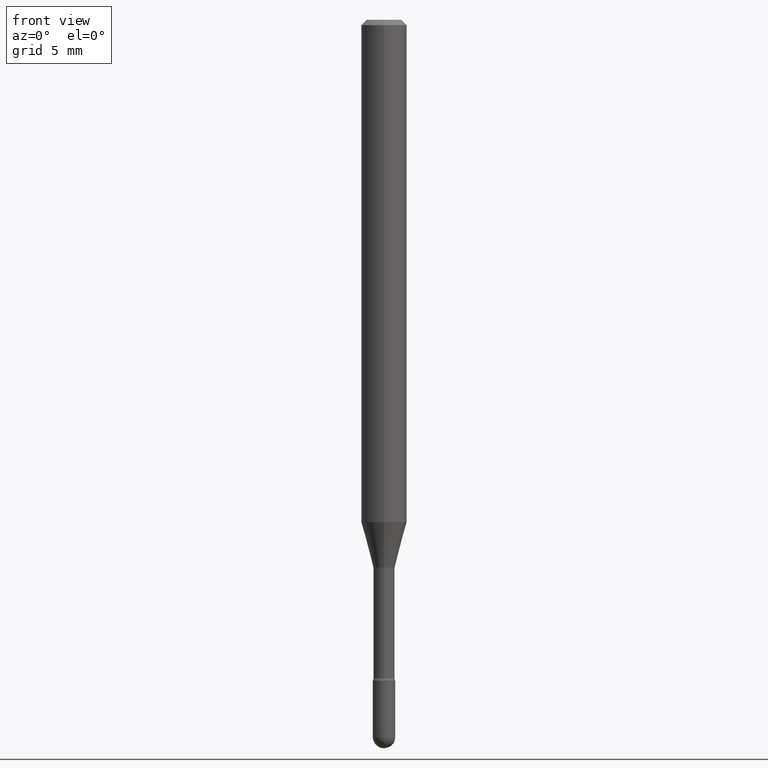
[diagram: clean part render]
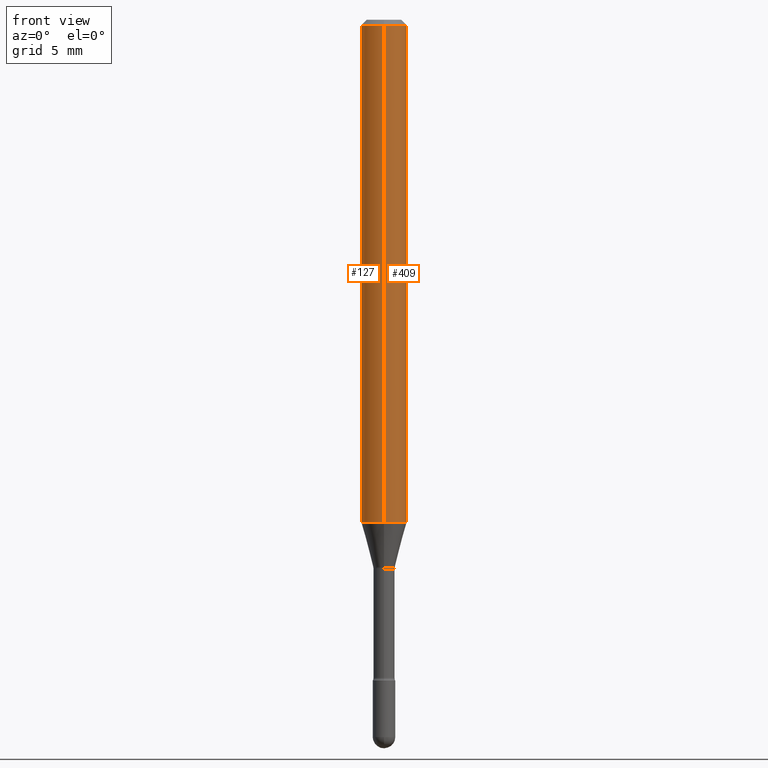
[diagram: same view with one multi-face feature highlighted, each face labeled with its STEP entity id]
A machine part, front view. The highlighted faces form ONE feature: a constant-radius fillet chain: 2 tangent blend faces with common blend radius 1.5875 mm. The faces share edges in the B-rep.
Their STEP definitions:
[1] entity #409 (Cylinder):
#3 = DIRECTION ( 'NONE',  ( -6.982962677686265922E-15, -1.000000000000000000, 3.491481724708022239E-15 ) ) ;
#9 = VECTOR ( 'NONE', #386, 39.37007874015748143 ) ;
#11 = CARTESIAN_POINT ( 'NONE',  ( 4.440892098500625669E-16, 0.06250000000000000000, 2.598557910969947226E-16 ) ) ;
#17 = CARTESIAN_POINT ( 'NONE',  ( 3.668202805105720472E-31, -5.237222587062061363E-17, -0.01500000000000008271 ) ) ;
#29 = EDGE_CURVE ( 'NONE', #126, #60, #77, .T. ) ;
#32 = AXIS2_PLACEMENT_3D ( 'NONE', #17, #71, #117 ) ;
#60 = VERTEX_POINT ( 'NONE', #251 ) ;
#66 = EDGE_CURVE ( 'NONE', #565, #60, #373, .T. ) ;
#69 = AXIS2_PLACEMENT_3D ( 'NONE', #546, #211, #382 ) ;
#71 = DIRECTION ( 'NONE',  ( -2.445468536737133447E-29, 3.491481724708021844E-15, 1.000000000000000000 ) ) ;
#77 = CIRCLE ( 'NONE', #32, 0.06250000000000000000 ) ;
#89 = ORIENTED_EDGE ( 'NONE', *, *, #29, .F. ) ;
#95 = CARTESIAN_POINT ( 'NONE',  ( 4.440892098500961428E-16, 0.06249999999999515665, -1.379536105567578330 ) ) ;
#115 = CARTESIAN_POINT ( 'NONE',  ( -4.364351673553580935E-16, -0.06250000000000484335, -1.379536105567577886 ) ) ;
#117 = DIRECTION ( 'NONE',  ( -6.982962677686265922E-15, -1.000000000000000000, 3.483106191921935554E-15 ) ) ;
#124 = AXIS2_PLACEMENT_3D ( 'NONE', #304, #314, #3 ) ;
#126 = VERTEX_POINT ( 'NONE', #273 ) ;
#190 = ORIENTED_EDGE ( 'NONE', *, *, #393, .T. ) ;
#209 = VERTEX_POINT ( 'NONE', #115 ) ;
#211 = DIRECTION ( 'NONE',  ( -2.445468536737133447E-29, 3.491481724708021844E-15, 1.000000000000000000 ) ) ;
#213 = CARTESIAN_POINT ( 'NONE',  ( -4.364351673553916201E-16, -0.06250000000000000000, 6.962910066854974038E-16 ) ) ;
#246 = VECTOR ( 'NONE', #499, 39.37007874015748143 ) ;
#251 = CARTESIAN_POINT ( 'NONE',  ( 4.440892098500965372E-16, 0.06249999999999995837, -0.01500000000000030129 ) ) ;
#273 = CARTESIAN_POINT ( 'NONE',  ( -4.364351673553912750E-16, -0.06250000000000005551, -0.01499999999999986587 ) ) ;
#304 = CARTESIAN_POINT ( 'NONE',  ( -1.169113584055446105E-44, 1.669184350826100908E-30, 4.780733988912460139E-16 ) ) ;
#314 = DIRECTION ( 'NONE',  ( -2.445468536737133447E-29, 3.491481724708021844E-15, 1.000000000000000000 ) ) ;
#334 = EDGE_CURVE ( 'NONE', #209, #126, #468, .T. ) ;
#373 = LINE ( 'NONE', #11, #246 ) ;
#382 = DIRECTION ( 'NONE',  ( -6.982962677686265922E-15, -1.000000000000000000, 4.370956789862821150E-15 ) ) ;
#386 = DIRECTION ( 'NONE',  ( -2.445468536737133447E-29, 3.491481724708022239E-15, 1.000000000000000000 ) ) ;
#393 = EDGE_CURVE ( 'NONE', #209, #565, #498, .T. ) ;
#409 = ADVANCED_FACE ( 'NONE', ( #556 ), #513, .T. ) ;
#462 = EDGE_LOOP ( 'NONE', ( #190, #521, #89, #518 ) ) ;
#468 = LINE ( 'NONE', #213, #9 ) ;
#498 = CIRCLE ( 'NONE', #69, 0.06250000000000000000 ) ;
#499 = DIRECTION ( 'NONE',  ( -2.445468536737133447E-29, 3.491481724708022239E-15, 1.000000000000000000 ) ) ;
#513 = CYLINDRICAL_SURFACE ( 'NONE', #124, 0.06250000000000000000 ) ;
#518 = ORIENTED_EDGE ( 'NONE', *, *, #334, .F. ) ;
#521 = ORIENTED_EDGE ( 'NONE', *, *, #66, .T. ) ;
#546 = CARTESIAN_POINT ( 'NONE',  ( 3.373612141458388691E-29, -4.816625101164075129E-15, -1.379536105567578108 ) ) ;
#556 = FACE_OUTER_BOUND ( 'NONE', #462, .T. ) ;
#565 = VERTEX_POINT ( 'NONE', #95 ) ;
[2] entity #127 (Cylinder):
#9 = VECTOR ( 'NONE', #386, 39.37007874015748143 ) ;
#11 = CARTESIAN_POINT ( 'NONE',  ( 4.440892098500625669E-16, 0.06250000000000000000, 2.598557910969947226E-16 ) ) ;
#16 = ORIENTED_EDGE ( 'NONE', *, *, #404, .F. ) ;
#21 = DIRECTION ( 'NONE',  ( -2.445468536737133447E-29, 3.491481724708021844E-15, 1.000000000000000000 ) ) ;
#60 = VERTEX_POINT ( 'NONE', #251 ) ;
#66 = EDGE_CURVE ( 'NONE', #565, #60, #373, .T. ) ;
#82 = DIRECTION ( 'NONE',  ( -6.982962677686265922E-15, -1.000000000000000000, 3.491481724708022239E-15 ) ) ;
#92 = AXIS2_PLACEMENT_3D ( 'NONE', #380, #474, #261 ) ;
#93 = ORIENTED_EDGE ( 'NONE', *, *, #334, .T. ) ;
#95 = CARTESIAN_POINT ( 'NONE',  ( 4.440892098500961428E-16, 0.06249999999999515665, -1.379536105567578330 ) ) ;
#115 = CARTESIAN_POINT ( 'NONE',  ( -4.364351673553580935E-16, -0.06250000000000484335, -1.379536105567577886 ) ) ;
#126 = VERTEX_POINT ( 'NONE', #273 ) ;
#127 = ADVANCED_FACE ( 'NONE', ( #227 ), #268, .T. ) ;
#166 = CARTESIAN_POINT ( 'NONE',  ( 3.373612141458388691E-29, -4.816625101164075129E-15, -1.379536105567578108 ) ) ;
#206 = DIRECTION ( 'NONE',  ( -6.982962677686265922E-15, -1.000000000000000000, 4.370956789862821150E-15 ) ) ;
#209 = VERTEX_POINT ( 'NONE', #115 ) ;
#213 = CARTESIAN_POINT ( 'NONE',  ( -4.364351673553916201E-16, -0.06250000000000000000, 6.962910066854974038E-16 ) ) ;
#227 = FACE_OUTER_BOUND ( 'NONE', #531, .T. ) ;
#241 = EDGE_CURVE ( 'NONE', #565, #209, #392, .T. ) ;
#246 = VECTOR ( 'NONE', #499, 39.37007874015748143 ) ;
#251 = CARTESIAN_POINT ( 'NONE',  ( 4.440892098500965372E-16, 0.06249999999999995837, -0.01500000000000030129 ) ) ;
#261 = DIRECTION ( 'NONE',  ( -6.982962677686265922E-15, -1.000000000000000000, 3.483106191921935554E-15 ) ) ;
#268 = CYLINDRICAL_SURFACE ( 'NONE', #318, 0.06250000000000000000 ) ;
#273 = CARTESIAN_POINT ( 'NONE',  ( -4.364351673553912750E-16, -0.06250000000000005551, -0.01499999999999986587 ) ) ;
#286 = ORIENTED_EDGE ( 'NONE', *, *, #241, .T. ) ;
#309 = AXIS2_PLACEMENT_3D ( 'NONE', #166, #21, #206 ) ;
#318 = AXIS2_PLACEMENT_3D ( 'NONE', #395, #422, #82 ) ;
#334 = EDGE_CURVE ( 'NONE', #209, #126, #468, .T. ) ;
#367 = CIRCLE ( 'NONE', #92, 0.06250000000000000000 ) ;
#373 = LINE ( 'NONE', #11, #246 ) ;
#380 = CARTESIAN_POINT ( 'NONE',  ( 3.668202805105720472E-31, -5.237222587062061363E-17, -0.01500000000000008271 ) ) ;
#386 = DIRECTION ( 'NONE',  ( -2.445468536737133447E-29, 3.491481724708022239E-15, 1.000000000000000000 ) ) ;
#392 = CIRCLE ( 'NONE', #309, 0.06250000000000000000 ) ;
#395 = CARTESIAN_POINT ( 'NONE',  ( -1.169113584055446105E-44, 1.669184350826100908E-30, 4.780733988912460139E-16 ) ) ;
#404 = EDGE_CURVE ( 'NONE', #60, #126, #367, .T. ) ;
#422 = DIRECTION ( 'NONE',  ( -2.445468536737133447E-29, 3.491481724708021844E-15, 1.000000000000000000 ) ) ;
#437 = ORIENTED_EDGE ( 'NONE', *, *, #66, .F. ) ;
#468 = LINE ( 'NONE', #213, #9 ) ;
#474 = DIRECTION ( 'NONE',  ( -2.445468536737133447E-29, 3.491481724708021844E-15, 1.000000000000000000 ) ) ;
#499 = DIRECTION ( 'NONE',  ( -2.445468536737133447E-29, 3.491481724708022239E-15, 1.000000000000000000 ) ) ;
#531 = EDGE_LOOP ( 'NONE', ( #437, #286, #93, #16 ) ) ;
#565 = VERTEX_POINT ( 'NONE', #95 ) ;